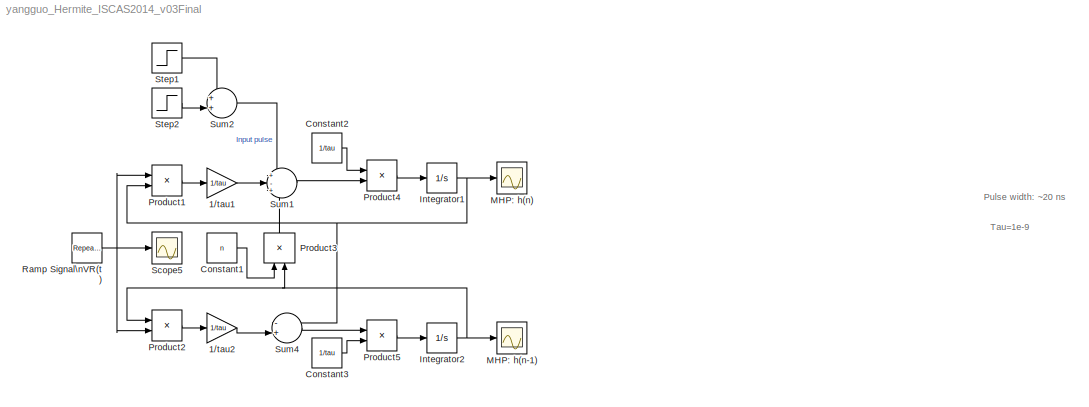
MODEL yangguo_Hermite_ISCAS2014_v03Final
KIND model
BLOCK [Gain] 1//tau1
  Gain = 1/tau
  OutDataTypeStr = Inherit: Inherit via internal rule
  ParamDataTypeStr = Inherit: Inherit via internal rule
  SID = 116
  SaturateOnIntegerOverflow = off
BLOCK [Gain] 1//tau2
  Gain = 1/tau
  OutDataTypeStr = Inherit: Inherit via internal rule
  ParamDataTypeStr = Inherit: Inherit via internal rule
  SID = 117
  SaturateOnIntegerOverflow = off
BLOCK [Constant] Constant1
  SID = 78
  Value = n
BLOCK [Constant] Constant2
  SID = 91
  Value = 1/tau
BLOCK [Constant] Constant3
  SID = 94
  Value = 1/tau
BLOCK [Integrator] Integrator1
  Ports = [1, 1]
  SID = 92
BLOCK [Integrator] Integrator2
  Ports = [1, 1]
  SID = 93
BLOCK [Scope] MHP: h(n)
  DataFormat = StructureWithTime
  Floating = off
  MaxDataPoints = 10000
  NumInputPorts = 1
  Ports = [1]
  SID = 88
  SampleTime = 0
  SaveName = Hn1
  SaveToWorkspace = on
  TimeRange = 1e-009
  YMax = 10000000000000
  YMin = -10000000000000
BLOCK [Scope] MHP: h(n-1)
  DataFormat = StructureWithTime
  Floating = off
  MaxDataPoints = 10000
  NumInputPorts = 1
  Ports = [1]
  SID = 89
  SampleTime = 0
  SaveName = MHn1
  SaveToWorkspace = on
BLOCK [Product] Product1
  InputSameDT = off
  OutDataTypeStr = Inherit: Inherit via internal rule
  Ports = [2, 1]
  SID = 75
  SaturateOnIntegerOverflow = off
BLOCK [Product] Product2
  InputSameDT = off
  OutDataTypeStr = Inherit: Inherit via internal rule
  Ports = [2, 1]
  SID = 86
  SaturateOnIntegerOverflow = off
BLOCK [Product] Product3
  InputSameDT = off
  OutDataTypeStr = Inherit: Inherit via internal rule
  Ports = [2, 1]
  SID = 77
  SaturateOnIntegerOverflow = off
BLOCK [Product] Product4
  InputSameDT = off
  OutDataTypeStr = Inherit: Inherit via internal rule
  Ports = [2, 1]
  SID = 90
  SaturateOnIntegerOverflow = off
BLOCK [Product] Product5
  InputSameDT = off
  OutDataTypeStr = Inherit: Inherit via internal rule
  Ports = [2, 1]
  SID = 83
  SaturateOnIntegerOverflow = off
BLOCK [Reference] Ramp Signal\nVR(t)  REF=simulink/Sources/Repeating\nSequence
  FunctionWithSeparateData = off
  GeneratePreprocessorConditionals = off
  Ports = [0, 1]
  RTWMemSecDataConstants = Inherit from model
  RTWMemSecDataInternal = Inherit from model
  RTWMemSecDataParameters = Inherit from model
  RTWMemSecFuncExecute = Inherit from model
  RTWMemSecFuncInitTerm = Inherit from model
  SID = 127
  ShowPortLabels = FromPortIcon
  SourceBlock = simulink/Sources/Repeating\nSequence
  SourceType = Repeating table
  SystemSampleTime = -1
  rep_seq_t = [0 20e-9]
  rep_seq_y = [-5e-9 5e-9]
BLOCK [Scope] Scope5
  DataFormat = StructureWithTime
  Floating = off
  MaxDataPoints = 10000
  NumInputPorts = 1
  Ports = [1]
  SID = 115
  SampleTime = 0
  SaveName = Output5
  SaveToWorkspace = on
  TimeRange = 1e-009
  YMax = 10000000000000
  YMin = -10000000000000
BLOCK [Step] Step1
  After = -1e-3
  SID = 109
  SampleTime = 0
  Time = 0.19e-8
BLOCK [Step] Step2
  After = 1e-3
  SID = 110
  SampleTime = 0
  Time = 0.2e-8
BLOCK [Sum] Sum1
  IconShape = round
  InputSameDT = off
  Inputs = +-+
  OutDataTypeStr = Inherit: Inherit via internal rule
  Ports = [3, 1]
  SID = 87
  SaturateOnIntegerOverflow = off
BLOCK [Sum] Sum2
  IconShape = round
  InputSameDT = off
  Inputs = ++|
  OutDataTypeStr = Inherit: Inherit via internal rule
  Ports = [2, 1]
  SID = 111
  SaturateOnIntegerOverflow = off
BLOCK [Sum] Sum4
  IconShape = round
  InputSameDT = off
  Inputs = -+|
  OutDataTypeStr = Inherit: Inherit via internal rule
  Ports = [2, 1]
  SID = 84
  SaturateOnIntegerOverflow = off
ANNOTATION (root): Pulse width: ~20 ns
ANNOTATION (root): Tau=1e-9
LINE 1//tau1:1 -> Sum1:2
LINE 1//tau2:1 -> Sum4:2
LINE Constant1:1 -> Product3:1
LINE Constant2:1 -> Product4:1
LINE Constant3:1 -> Product5:2
NET Integrator1:1 -> MHP: h(n):1, Product1:2, Sum4:1
NET Integrator2:1 -> MHP: h(n-1):1, Product2:1, Product3:2
LINE Product1:1 -> 1//tau1:1
LINE Product2:1 -> 1//tau2:1
LINE Product3:1 -> Sum1:3
LINE Product4:1 -> Integrator1:1
LINE Product5:1 -> Integrator2:1
NET Ramp Signal\nVR(t):1 -> Product1:1, Product2:2, Scope5:1
LINE Step1:1 -> Sum2:1
LINE Step2:1 -> Sum2:2
LINE Sum1:1 -> Product4:2
LINE Sum2:1 -> Sum1:1
LINE Sum4:1 -> Product5:1
note: NET lines group one-source signal fan-out (src -> all destinations, sorted); 1:1 wires keep LINE
